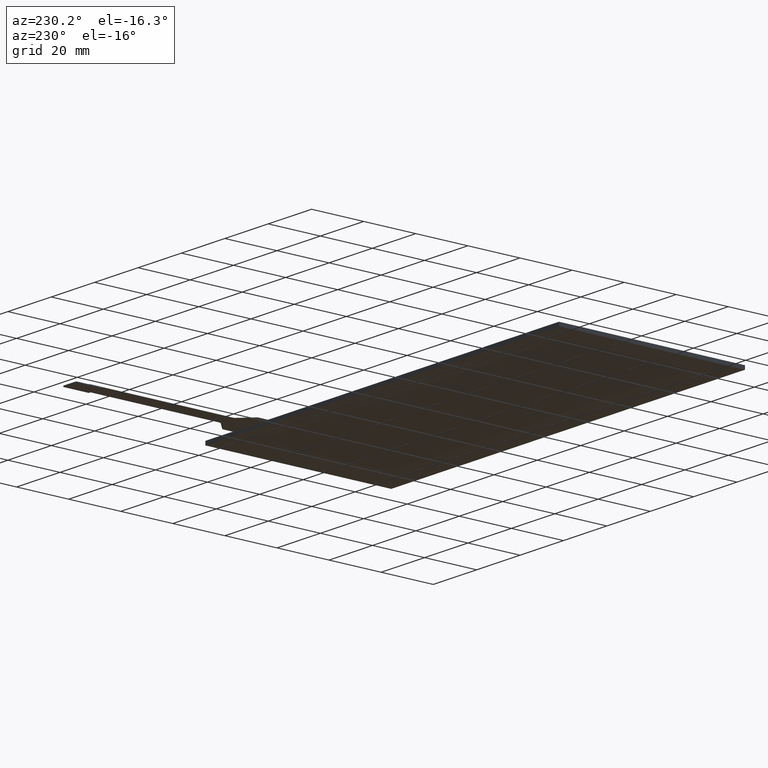
[diagram: clean part render]
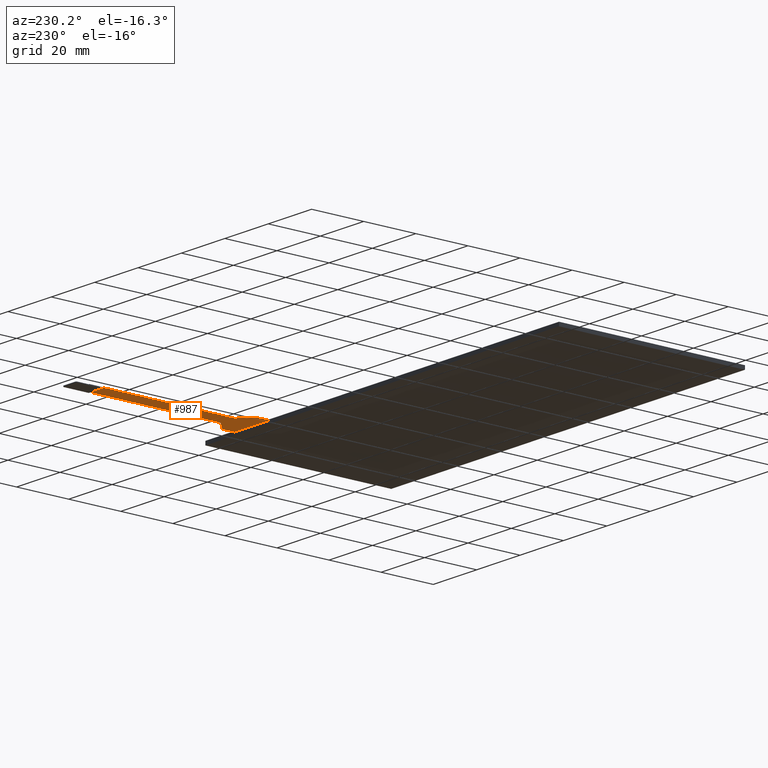
[diagram: same view with one face highlighted and labeled with its STEP entity id]
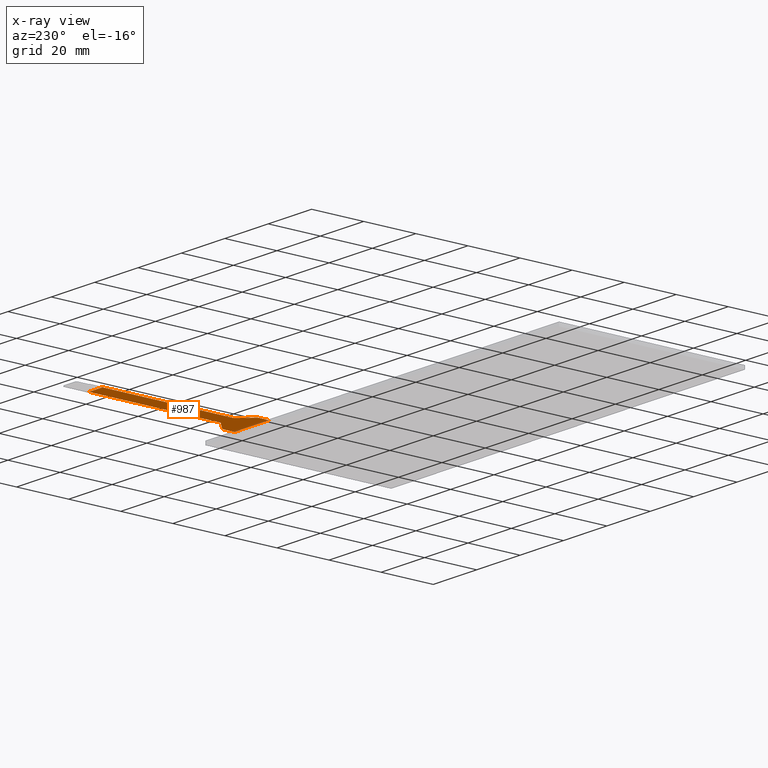
[diagram: x-ray of the same camera — body ghosted, the highlighted face saturated]
A machine part, auxiliary view. The second image highlights one B-rep face of the part: STEP entity #987.
The next image is the same camera in x-ray: the body ghosted, the highlighted face saturated — about 0% of this face is hidden behind the body in this view.
In plain terms, the highlighted planar face has unit normal (0, 0, -1).
Its self-contained STEP definition (entity closure, byte-faithful):
#55=PLANE('',#1070);
#106=FACE_OUTER_BOUND('',#157,.T.);
#157=EDGE_LOOP('',(#771,#772,#773,#774,#775,#776,#777,#778,#779,#780,#781,
#782));
#228=LINE('',#1437,#354);
#238=LINE('',#1465,#364);
#244=LINE('',#1478,#370);
#246=LINE('',#1485,#372);
#247=LINE('',#1486,#373);
#248=LINE('',#1488,#374);
#249=LINE('',#1490,#375);
#250=LINE('',#1491,#376);
#354=VECTOR('',#1164,10.);
#364=VECTOR('',#1188,10.);
#370=VECTOR('',#1200,10.);
#372=VECTOR('',#1208,10.);
#373=VECTOR('',#1209,10.);
#374=VECTOR('',#1210,10.);
#375=VECTOR('',#1211,10.);
#376=VECTOR('',#1212,10.);
#455=CIRCLE('',#1055,1.);
#460=CIRCLE('',#1063,1.);
#461=CIRCLE('',#1066,1.);
#462=CIRCLE('',#1069,1.);
#489=VERTEX_POINT('',#1424);
#490=VERTEX_POINT('',#1425);
#494=VERTEX_POINT('',#1435);
#504=VERTEX_POINT('',#1459);
#505=VERTEX_POINT('',#1463);
#507=VERTEX_POINT('',#1470);
#508=VERTEX_POINT('',#1472);
#509=VERTEX_POINT('',#1476);
#510=VERTEX_POINT('',#1480);
#511=VERTEX_POINT('',#1484);
#512=VERTEX_POINT('',#1487);
#513=VERTEX_POINT('',#1489);
#584=EDGE_CURVE('',#489,#490,#455,.T.);
#590=EDGE_CURVE('',#489,#494,#228,.T.);
#602=EDGE_CURVE('',#504,#494,#460,.T.);
#604=EDGE_CURVE('',#504,#505,#238,.T.);
#608=EDGE_CURVE('',#507,#508,#461,.T.);
#611=EDGE_CURVE('',#507,#509,#244,.T.);
#612=EDGE_CURVE('',#510,#509,#462,.T.);
#614=EDGE_CURVE('',#505,#511,#246,.T.);
#615=EDGE_CURVE('',#511,#508,#247,.T.);
#616=EDGE_CURVE('',#510,#512,#248,.T.);
#617=EDGE_CURVE('',#513,#512,#249,.T.);
#618=EDGE_CURVE('',#513,#490,#250,.T.);
#771=ORIENTED_EDGE('',*,*,#584,.F.);
#772=ORIENTED_EDGE('',*,*,#590,.T.);
#773=ORIENTED_EDGE('',*,*,#602,.F.);
#774=ORIENTED_EDGE('',*,*,#604,.T.);
#775=ORIENTED_EDGE('',*,*,#614,.T.);
#776=ORIENTED_EDGE('',*,*,#615,.T.);
#777=ORIENTED_EDGE('',*,*,#608,.F.);
#778=ORIENTED_EDGE('',*,*,#611,.T.);
#779=ORIENTED_EDGE('',*,*,#612,.F.);
#780=ORIENTED_EDGE('',*,*,#616,.T.);
#781=ORIENTED_EDGE('',*,*,#617,.F.);
#782=ORIENTED_EDGE('',*,*,#618,.T.);
#987=ADVANCED_FACE('',(#106),#55,.T.);
#1055=AXIS2_PLACEMENT_3D('',#1426,#1154,#1155);
#1063=AXIS2_PLACEMENT_3D('',#1461,#1183,#1184);
#1066=AXIS2_PLACEMENT_3D('',#1473,#1194,#1195);
#1069=AXIS2_PLACEMENT_3D('',#1481,#1203,#1204);
#1070=AXIS2_PLACEMENT_3D('',#1483,#1206,#1207);
#1154=DIRECTION('center_axis',(0.,0.,1.));
#1155=DIRECTION('ref_axis',(-0.926470977387794,0.376366215351626,0.));
#1164=DIRECTION('',(0.697384750785127,0.716696943883791,0.));
#1183=DIRECTION('center_axis',(0.,0.,-1.));
#1184=DIRECTION('ref_axis',(0.926470977387797,-0.376366215351618,0.));
#1188=DIRECTION('',(-2.93128191320173E-16,1.,0.));
#1194=DIRECTION('center_axis',(0.,0.,-1.));
#1195=DIRECTION('ref_axis',(-0.921245013768086,-0.388982807598792,0.));
#1200=DIRECTION('',(0.716696943883792,-0.697384750785126,0.));
#1203=DIRECTION('center_axis',(0.,0.,1.));
#1204=DIRECTION('ref_axis',(0.921245013768086,0.388982807598792,0.));
#1206=DIRECTION('center_axis',(0.,0.,-1.));
#1207=DIRECTION('ref_axis',(-1.,0.,0.));
#1208=DIRECTION('',(1.,2.8421709430404E-15,0.));
#1209=DIRECTION('',(0.,-1.,0.));
#1210=DIRECTION('',(0.,-1.,0.));
#1211=DIRECTION('',(1.,0.,0.));
#1212=DIRECTION('',(0.,1.,0.));
#1424=CARTESIAN_POINT('',(50.1833030561162,42.7811483715164,-0.3));
#1425=CARTESIAN_POINT('',(49.9,42.0837636207312,-0.3));
#1426=CARTESIAN_POINT('Origin',(50.9,42.0837636207312,-0.3));
#1435=CARTESIAN_POINT('',(54.4916969438838,47.2088516284837,-0.3));
#1437=CARTESIAN_POINT('',(54.775,47.5,-0.3));
#1459=CARTESIAN_POINT('',(54.775,47.9062363792688,-0.3));
#1461=CARTESIAN_POINT('Origin',(53.775,47.9062363792688,-0.3));
#1463=CARTESIAN_POINT('',(54.775,98.0999999999997,-0.3));
#1465=CARTESIAN_POINT('',(54.775,108.1,-0.3));
#1470=CARTESIAN_POINT('',(61.3276152492149,47.2055390539077,-0.3));
#1472=CARTESIAN_POINT('',(61.025,47.9222359977915,-0.3));
#1473=CARTESIAN_POINT('Origin',(62.025,47.9222359977915,-0.3));
#1476=CARTESIAN_POINT('',(65.5973847507851,43.0508232215414,-0.3));
#1478=CARTESIAN_POINT('',(65.9,42.7563622754491,-0.3));
#1480=CARTESIAN_POINT('',(65.9,42.3341262776576,-0.3));
#1481=CARTESIAN_POINT('Origin',(64.9,42.3341262776576,-0.3));
#1483=CARTESIAN_POINT('Origin',(57.9,73.1,-0.3));
#1484=CARTESIAN_POINT('',(61.025,98.0999999999997,-0.3));
#1485=CARTESIAN_POINT('',(59.4625,98.0999999999997,-0.3));
#1486=CARTESIAN_POINT('',(61.025,47.5,-0.3));
#1487=CARTESIAN_POINT('',(65.9,38.1,-0.3));
#1488=CARTESIAN_POINT('',(65.9,38.1,-0.3));
#1489=CARTESIAN_POINT('',(49.9,38.1,-0.3));
#1490=CARTESIAN_POINT('',(-12.9,38.1,-0.3));
#1491=CARTESIAN_POINT('',(49.9,42.49,-0.3));